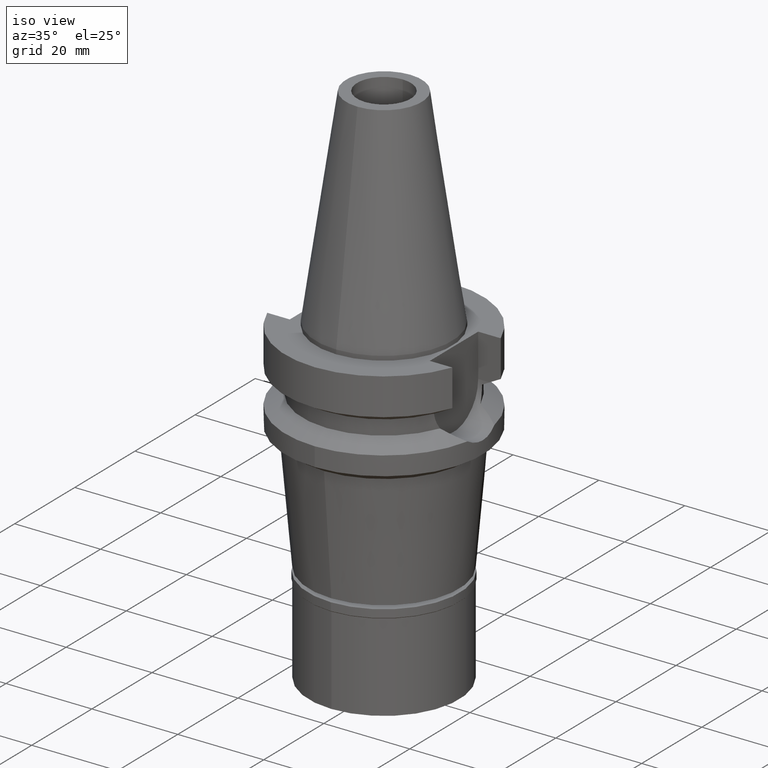
[diagram: clean part render]
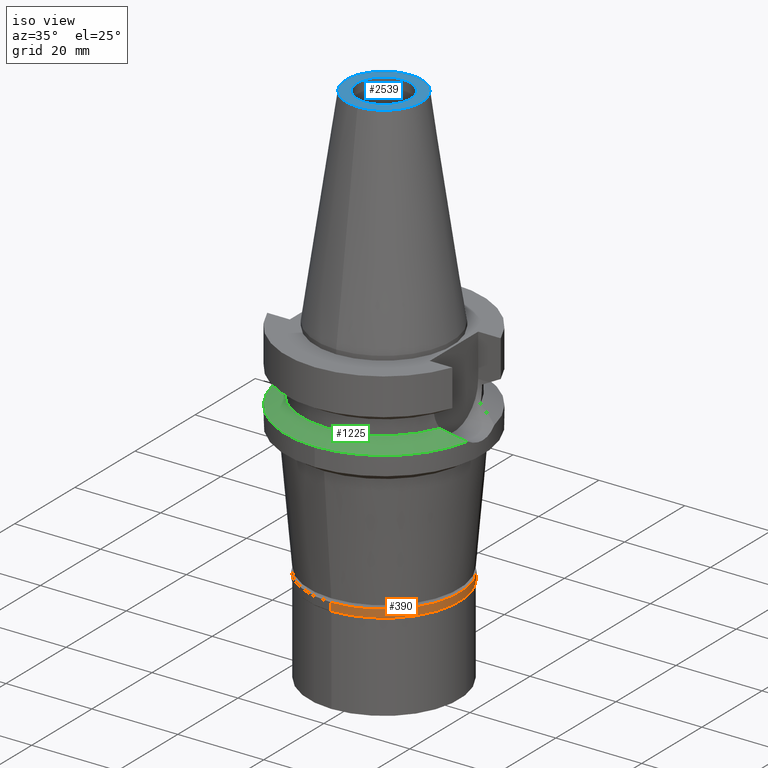
[diagram: same view with three faces highlighted in distinct colors, each labeled with its STEP entity id]
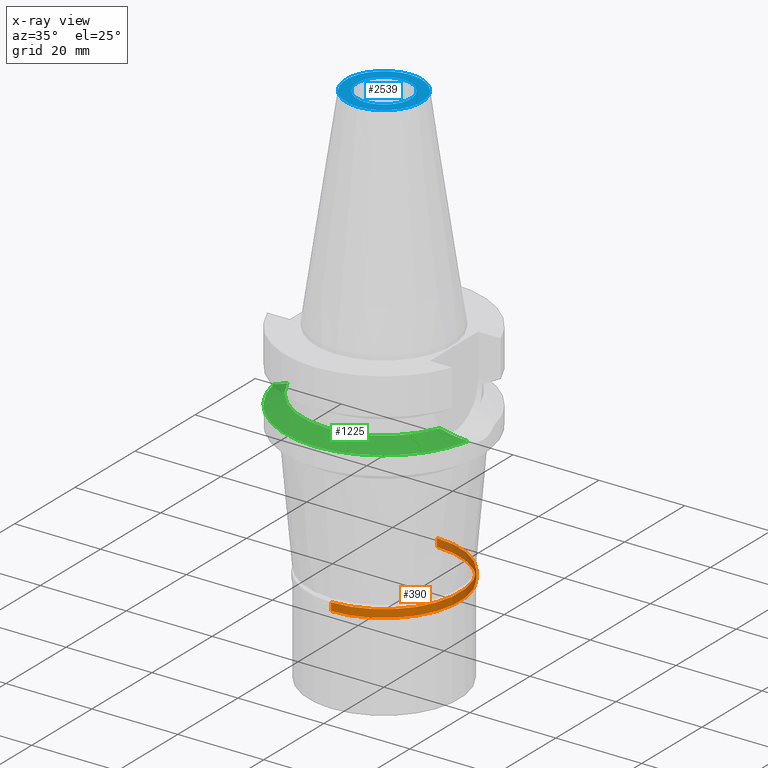
[diagram: x-ray of the same camera — body ghosted, the three highlighted faces saturated]
A machine part, iso view with three faces highlighted in distinct colors.
The next image is the same camera in x-ray (body ghosted, the three faces saturated) — at least one of them is partly hidden behind the body in this view.
Their STEP definitions:

[orange] entity #390 — the highlighted cylindrical surface (partial cylindrical patch) has radius 17.65 mm, axis along (0, 0, -1).
#154 = AXIS2_PLACEMENT_3D ( 'NONE', #2248, #1317, #2494 ) ;
#224 = VERTEX_POINT ( 'NONE', #2593 ) ;
#267 = EDGE_CURVE ( 'NONE', #831, #777, #1931, .T. ) ;
#319 = FACE_OUTER_BOUND ( 'NONE', #408, .T. ) ;
#332 = LINE ( 'NONE', #1008, #1618 ) ;
#376 = CARTESIAN_POINT ( 'NONE',  ( 0.0000000000000000000, 0.0000000000000000000, -1.850000000000000089 ) ) ;
#390 = ADVANCED_FACE ( 'NONE', ( #319 ), #1067, .T. ) ;
#408 = EDGE_LOOP ( 'NONE', ( #2113, #1609, #863, #902 ) ) ;
#458 = CARTESIAN_POINT ( 'NONE',  ( 0.0000000000000000000, -17.64999999999999858, -1.850000000000000089 ) ) ;
#468 = CARTESIAN_POINT ( 'NONE',  ( 0.0000000000000000000, -17.64999999999999858, 0.0000000000000000000 ) ) ;
#531 = AXIS2_PLACEMENT_3D ( 'NONE', #2891, #1050, #3041 ) ;
#777 = VERTEX_POINT ( 'NONE', #458 ) ;
#831 = VERTEX_POINT ( 'NONE', #2677 ) ;
#863 = ORIENTED_EDGE ( 'NONE', *, *, #2890, .T. ) ;
#902 = ORIENTED_EDGE ( 'NONE', *, *, #1852, .F. ) ;
#1008 = CARTESIAN_POINT ( 'NONE',  ( 0.0000000000000000000, 17.64999999999999858, 0.0000000000000000000 ) ) ;
#1050 = DIRECTION ( 'NONE',  ( 0.0000000000000000000, 0.0000000000000000000, -1.000000000000000000 ) ) ;
#1067 = CYLINDRICAL_SURFACE ( 'NONE', #154, 17.64999999999999858 ) ;
#1278 = DIRECTION ( 'NONE',  ( 0.0000000000000000000, 0.0000000000000000000, -1.000000000000000000 ) ) ;
#1317 = DIRECTION ( 'NONE',  ( 0.0000000000000000000, 0.0000000000000000000, -1.000000000000000000 ) ) ;
#1609 = ORIENTED_EDGE ( 'NONE', *, *, #267, .T. ) ;
#1618 = VECTOR ( 'NONE', #1278, 1000.000000000000000 ) ;
#1827 = DIRECTION ( 'NONE',  ( 0.0000000000000000000, 0.0000000000000000000, 1.000000000000000000 ) ) ;
#1852 = EDGE_CURVE ( 'NONE', #2281, #224, #332, .T. ) ;
#1874 = DIRECTION ( 'NONE',  ( 0.0000000000000000000, 0.0000000000000000000, -1.000000000000000000 ) ) ;
#1915 = VECTOR ( 'NONE', #1874, 1000.000000000000000 ) ;
#1931 = LINE ( 'NONE', #468, #1915 ) ;
#2113 = ORIENTED_EDGE ( 'NONE', *, *, #2453, .T. ) ;
#2221 = AXIS2_PLACEMENT_3D ( 'NONE', #376, #1827, #3053 ) ;
#2248 = CARTESIAN_POINT ( 'NONE',  ( 0.0000000000000000000, 0.0000000000000000000, 0.0000000000000000000 ) ) ;
#2275 = CARTESIAN_POINT ( 'NONE',  ( 0.0000000000000000000, 17.64999999999999858, 0.0000000000000000000 ) ) ;
#2281 = VERTEX_POINT ( 'NONE', #2275 ) ;
#2370 = CIRCLE ( 'NONE', #2221, 17.64999999999999858 ) ;
#2453 = EDGE_CURVE ( 'NONE', #2281, #831, #2772, .T. ) ;
#2494 = DIRECTION ( 'NONE',  ( 0.0000000000000000000, -1.000000000000000000, 0.0000000000000000000 ) ) ;
#2593 = CARTESIAN_POINT ( 'NONE',  ( 0.0000000000000000000, 17.64999999999999858, -1.850000000000000089 ) ) ;
#2677 = CARTESIAN_POINT ( 'NONE',  ( 0.0000000000000000000, -17.64999999999999858, 0.0000000000000000000 ) ) ;
#2772 = CIRCLE ( 'NONE', #531, 17.64999999999999858 ) ;
#2890 = EDGE_CURVE ( 'NONE', #777, #224, #2370, .T. ) ;
#2891 = CARTESIAN_POINT ( 'NONE',  ( 0.0000000000000000000, 0.0000000000000000000, 0.0000000000000000000 ) ) ;
#3041 = DIRECTION ( 'NONE',  ( 0.0000000000000000000, 1.000000000000000000, 0.0000000000000000000 ) ) ;
#3053 = DIRECTION ( 'NONE',  ( 0.0000000000000000000, -1.000000000000000000, 0.0000000000000000000 ) ) ;

[blue] entity #2539 — the highlighted planar face has unit normal (0, 0, -1).
#9 = AXIS2_PLACEMENT_3D ( 'NONE', #904, #1839, #2790 ) ;
#24 = VERTEX_POINT ( 'NONE', #1794 ) ;
#153 = AXIS2_PLACEMENT_3D ( 'NONE', #2719, #1536, #2302 ) ;
#209 = DIRECTION ( 'NONE',  ( 0.0000000000000000000, 0.0000000000000000000, -1.000000000000000000 ) ) ;
#273 = FACE_OUTER_BOUND ( 'NONE', #1504, .T. ) ;
#421 = DIRECTION ( 'NONE',  ( 0.0000000000000000000, 0.0000000000000000000, 1.000000000000000000 ) ) ;
#488 = AXIS2_PLACEMENT_3D ( 'NONE', #1035, #547, #1488 ) ;
#514 = VERTEX_POINT ( 'NONE', #1722 ) ;
#547 = DIRECTION ( 'NONE',  ( 0.0000000000000000000, 0.0000000000000000000, -1.000000000000000000 ) ) ;
#656 = CARTESIAN_POINT ( 'NONE',  ( 0.0000000000000000000, 0.0000000000000000000, 48.39999999999999858 ) ) ;
#839 = ORIENTED_EDGE ( 'NONE', *, *, #1422, .F. ) ;
#904 = CARTESIAN_POINT ( 'NONE',  ( 0.0000000000000000000, 0.0000000000000000000, 48.39999999999999858 ) ) ;
#1011 = EDGE_CURVE ( 'NONE', #514, #1973, #2515, .T. ) ;
#1035 = CARTESIAN_POINT ( 'NONE',  ( 0.0000000000000000000, 0.0000000000000000000, 48.39999999999999858 ) ) ;
#1133 = DIRECTION ( 'NONE',  ( 0.0000000000000000000, -1.000000000000000000, 0.0000000000000000000 ) ) ;
#1335 = CIRCLE ( 'NONE', #9, 6.250000000000000000 ) ;
#1362 = DIRECTION ( 'NONE',  ( 0.0000000000000000000, -1.000000000000000000, 0.0000000000000000000 ) ) ;
#1422 = EDGE_CURVE ( 'NONE', #1973, #514, #1335, .T. ) ;
#1434 = ORIENTED_EDGE ( 'NONE', *, *, #2698, .F. ) ;
#1488 = DIRECTION ( 'NONE',  ( 0.0000000000000000000, -1.000000000000000000, 0.0000000000000000000 ) ) ;
#1504 = EDGE_LOOP ( 'NONE', ( #2530, #1434 ) ) ;
#1536 = DIRECTION ( 'NONE',  ( 0.0000000000000000000, 0.0000000000000000000, -1.000000000000000000 ) ) ;
#1616 = AXIS2_PLACEMENT_3D ( 'NONE', #656, #421, #1362 ) ;
#1645 = EDGE_LOOP ( 'NONE', ( #839, #2859 ) ) ;
#1722 = CARTESIAN_POINT ( 'NONE',  ( 0.0000000000000000000, -6.250000000000000000, 48.39999999999999858 ) ) ;
#1794 = CARTESIAN_POINT ( 'NONE',  ( 0.0000000000000000000, 8.816791732783000768, 48.39999999999999858 ) ) ;
#1839 = DIRECTION ( 'NONE',  ( 0.0000000000000000000, 0.0000000000000000000, 1.000000000000000000 ) ) ;
#1933 = EDGE_CURVE ( 'NONE', #24, #2037, #2084, .T. ) ;
#1944 = CARTESIAN_POINT ( 'NONE',  ( 0.0000000000000000000, 0.0000000000000000000, 48.39999999999999858 ) ) ;
#1967 = AXIS2_PLACEMENT_3D ( 'NONE', #1944, #209, #1133 ) ;
#1973 = VERTEX_POINT ( 'NONE', #2075 ) ;
#2037 = VERTEX_POINT ( 'NONE', #2142 ) ;
#2075 = CARTESIAN_POINT ( 'NONE',  ( 0.0000000000000000000, 6.250000000000000000, 48.39999999999999858 ) ) ;
#2084 = CIRCLE ( 'NONE', #153, 8.816791732783000768 ) ;
#2119 = FACE_BOUND ( 'NONE', #1645, .T. ) ;
#2142 = CARTESIAN_POINT ( 'NONE',  ( 0.0000000000000000000, -8.816791732783000768, 48.39999999999999858 ) ) ;
#2227 = PLANE ( 'NONE',  #1967 ) ;
#2302 = DIRECTION ( 'NONE',  ( 0.0000000000000000000, 1.000000000000000000, 0.0000000000000000000 ) ) ;
#2415 = CIRCLE ( 'NONE', #488, 8.816791732783000768 ) ;
#2515 = CIRCLE ( 'NONE', #1616, 6.250000000000000000 ) ;
#2530 = ORIENTED_EDGE ( 'NONE', *, *, #1933, .F. ) ;
#2539 = ADVANCED_FACE ( 'NONE', ( #273, #2119 ), #2227, .F. ) ;
#2698 = EDGE_CURVE ( 'NONE', #2037, #24, #2415, .T. ) ;
#2719 = CARTESIAN_POINT ( 'NONE',  ( 0.0000000000000000000, 0.0000000000000000000, 48.39999999999999858 ) ) ;
#2790 = DIRECTION ( 'NONE',  ( 0.0000000000000000000, 1.000000000000000000, 0.0000000000000000000 ) ) ;
#2859 = ORIENTED_EDGE ( 'NONE', *, *, #1011, .F. ) ;

[green] entity #1225 — the highlighted conical surface has half-angle 60 deg.
#14 = CARTESIAN_POINT ( 'NONE',  ( 17.75736593456000278, -6.758398853743999624, -15.32339055352999857 ) ) ;
#55 = CARTESIAN_POINT ( 'NONE',  ( 22.55786346208000026, -4.488072640470000430, -17.63279163029000074 ) ) ;
#163 = B_SPLINE_CURVE_WITH_KNOTS ( 'NONE', 3,
 ( #14, #2794, #732, #435 ),
 .UNSPECIFIED., .F., .F.,
 ( 4, 4 ),
 ( 0.0000000000000000000, 1.000000000000000000 ),
 .UNSPECIFIED. ) ;
#371 = VERTEX_POINT ( 'NONE', #55 ) ;
#385 = CARTESIAN_POINT ( 'NONE',  ( -21.37344794595614061, -5.343258989439321205, -17.05846002343264090 ) ) ;
#388 = ORIENTED_EDGE ( 'NONE', *, *, #1453, .F. ) ;
#409 = CARTESIAN_POINT ( 'NONE',  ( 17.75736593456000278, -6.758398853743999624, -15.32339055352999857 ) ) ;
#435 = CARTESIAN_POINT ( 'NONE',  ( 22.55786346208000026, -4.488072640470000430, -17.63279163029000074 ) ) ;
#446 = AXIS2_PLACEMENT_3D ( 'NONE', #791, #1903, #1681 ) ;
#567 = VERTEX_POINT ( 'NONE', #836 ) ;
#641 = CARTESIAN_POINT ( 'NONE',  ( 0.0000000000000000000, 0.0000000000000000000, -15.32339055352999857 ) ) ;
#683 = CARTESIAN_POINT ( 'NONE',  ( -22.55786346208000026, -4.488072640470000430, -17.63279163029000074 ) ) ;
#732 = CARTESIAN_POINT ( 'NONE',  ( 21.37344794592318920, -5.343258989448318452, -17.05846002342660128 ) ) ;
#739 = ORIENTED_EDGE ( 'NONE', *, *, #2979, .F. ) ;
#791 = CARTESIAN_POINT ( 'NONE',  ( 0.0000000000000000000, 0.0000000000000000000, -16.47809109191000232 ) ) ;
#836 = CARTESIAN_POINT ( 'NONE',  ( -22.55786346208000026, -4.488072640470000430, -17.63279163029000074 ) ) ;
#848 = CIRCLE ( 'NONE', #1566, 23.00000000000001066 ) ;
#943 = AXIS2_PLACEMENT_3D ( 'NONE', #1094, #2039, #1340 ) ;
#967 = VERTEX_POINT ( 'NONE', #409 ) ;
#1006 = CARTESIAN_POINT ( 'NONE',  ( 0.0000000000000000000, 0.0000000000000000000, -17.63279163029000074 ) ) ;
#1094 = CARTESIAN_POINT ( 'NONE',  ( 0.0000000000000000000, 0.0000000000000000000, -17.63279163029000074 ) ) ;
#1188 = CARTESIAN_POINT ( 'NONE',  ( 0.0000000000000000000, -23.00000000000000000, -17.63279163029000074 ) ) ;
#1225 = ADVANCED_FACE ( 'NONE', ( #2434 ), #2374, .T. ) ;
#1340 = DIRECTION ( 'NONE',  ( 0.0000000000000000000, -1.000000000000000000, 0.0000000000000000000 ) ) ;
#1407 = ORIENTED_EDGE ( 'NONE', *, *, #2886, .F. ) ;
#1453 = EDGE_CURVE ( 'NONE', #967, #371, #163, .T. ) ;
#1566 = AXIS2_PLACEMENT_3D ( 'NONE', #1006, #1950, #2897 ) ;
#1607 = ORIENTED_EDGE ( 'NONE', *, *, #1786, .F. ) ;
#1663 = CIRCLE ( 'NONE', #943, 23.00000000000000000 ) ;
#1681 = DIRECTION ( 'NONE',  ( 0.0000000000000000000, -1.000000000000000000, 0.0000000000000000000 ) ) ;
#1780 = ORIENTED_EDGE ( 'NONE', *, *, #2900, .F. ) ;
#1786 = EDGE_CURVE ( 'NONE', #567, #3065, #2622, .T. ) ;
#1903 = DIRECTION ( 'NONE',  ( 0.0000000000000000000, 0.0000000000000000000, -1.000000000000000000 ) ) ;
#1950 = DIRECTION ( 'NONE',  ( 0.0000000000000000000, 0.0000000000000000000, -1.000000000000000000 ) ) ;
#2020 = VERTEX_POINT ( 'NONE', #1188 ) ;
#2039 = DIRECTION ( 'NONE',  ( 0.0000000000000000000, 0.0000000000000000000, -1.000000000000000000 ) ) ;
#2374 = CONICAL_SURFACE ( 'NONE', #446, 21.00000000000000000, 1.047197551196400456 ) ;
#2417 = AXIS2_PLACEMENT_3D ( 'NONE', #641, #2508, #2496 ) ;
#2434 = FACE_OUTER_BOUND ( 'NONE', #2541, .T. ) ;
#2496 = DIRECTION ( 'NONE',  ( 0.0000000000000000000, -1.000000000000000000, 0.0000000000000000000 ) ) ;
#2508 = DIRECTION ( 'NONE',  ( 0.0000000000000000000, 0.0000000000000000000, 1.000000000000000000 ) ) ;
#2541 = EDGE_LOOP ( 'NONE', ( #739, #1407, #388, #1780, #1607 ) ) ;
#2562 = CARTESIAN_POINT ( 'NONE',  ( -17.75736593456000278, -6.758398853743999624, -15.32339055352999857 ) ) ;
#2577 = CARTESIAN_POINT ( 'NONE',  ( -17.75736593456000278, -6.758398853743999624, -15.32339055352999857 ) ) ;
#2622 = B_SPLINE_CURVE_WITH_KNOTS ( 'NONE', 3,
 ( #683, #385, #2975, #2562 ),
 .UNSPECIFIED., .F., .F.,
 ( 4, 4 ),
 ( 0.0000000000000000000, 1.000000000000000000 ),
 .UNSPECIFIED. ) ;
#2794 = CARTESIAN_POINT ( 'NONE',  ( 19.77328210341651982, -6.137069160779883958, -16.28355951930863910 ) ) ;
#2886 = EDGE_CURVE ( 'NONE', #371, #2020, #848, .T. ) ;
#2897 = DIRECTION ( 'NONE',  ( 0.9807766722643714852, -0.1951335930638943839, 0.0000000000000000000 ) ) ;
#2900 = EDGE_CURVE ( 'NONE', #3065, #967, #3026, .T. ) ;
#2975 = CARTESIAN_POINT ( 'NONE',  ( -19.77328210344947479, -6.137069160773994447, -16.28355951931774115 ) ) ;
#2979 = EDGE_CURVE ( 'NONE', #2020, #567, #1663, .T. ) ;
#3026 = CIRCLE ( 'NONE', #2417, 19.00000000000000000 ) ;
#3065 = VERTEX_POINT ( 'NONE', #2577 ) ;